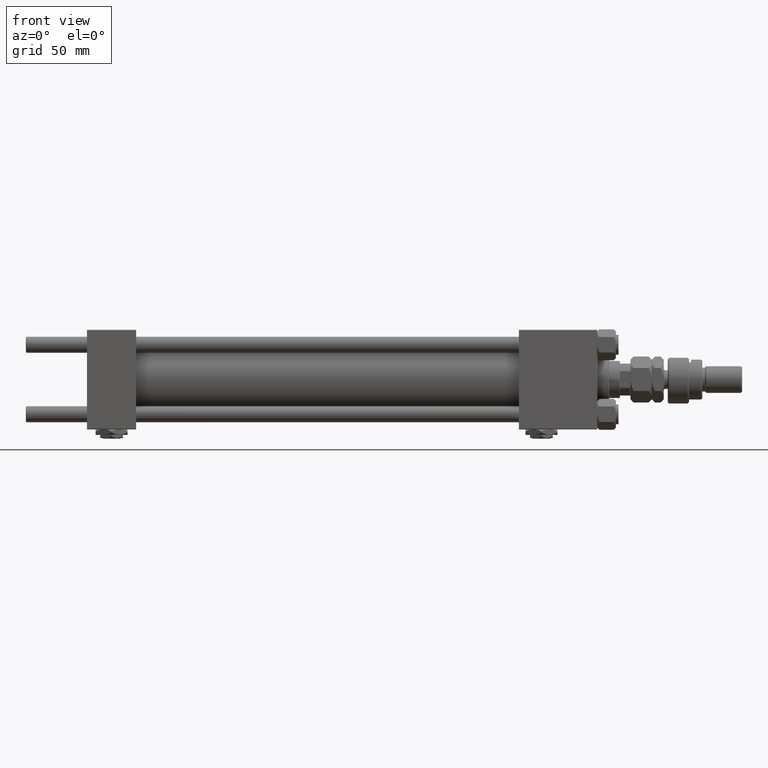
[diagram: clean part render]
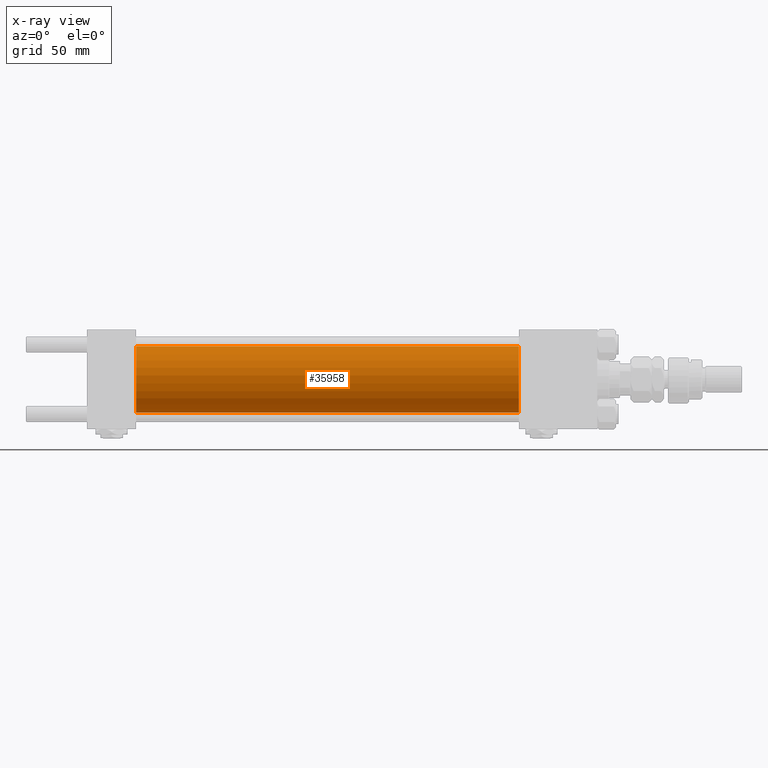
[diagram: x-ray — body ghosted, one internal face saturated and labeled with its STEP entity id]
A machine part, front view, then the same camera in x-ray: the body is ghosted and one INTERNAL B-rep face — a face not visible from any outside direction — is saturated and labeled: STEP entity #35958.
In plain terms, the highlighted cylindrical surface (edge-blend (fillet) strip) has radius 25 mm, axis along (-1, -0, -0).
Its self-contained STEP definition (entity closure, byte-faithful):
#188 = FACE_OUTER_BOUND ( 'NONE', #24389, .T. ) ;
#896 = EDGE_CURVE ( 'NONE', #8909, #50300, #6625, .T. ) ;
#3123 = DIRECTION ( 'NONE',  ( -1.000000000000000000, -0.000000000000000000, -0.000000000000000000 ) ) ;
#3443 = EDGE_CURVE ( 'NONE', #26294, #39742, #15533, .T. ) ;
#3721 = CARTESIAN_POINT ( 'NONE',  ( 324.9999999999999432, 0.000000000000000000, 25.00000000000000000 ) ) ;
#3884 = EDGE_CURVE ( 'NONE', #39742, #50300, #20054, .T. ) ;
#4480 = CARTESIAN_POINT ( 'NONE',  ( 324.9999999999999432, 0.000000000000000000, 0.000000000000000000 ) ) ;
#5401 = CYLINDRICAL_SURFACE ( 'NONE', #26863, 25.00000000000000000 ) ;
#6625 = CIRCLE ( 'NONE', #34843, 25.00000000000000000 ) ;
#7011 = ORIENTED_EDGE ( 'NONE', *, *, #3884, .T. ) ;
#7551 = DIRECTION ( 'NONE',  ( 1.000000000000000000, 0.000000000000000000, 0.000000000000000000 ) ) ;
#8909 = VERTEX_POINT ( 'NONE', #48998 ) ;
#10657 = CARTESIAN_POINT ( 'NONE',  ( 324.9999999999999432, 0.000000000000000000, 0.000000000000000000 ) ) ;
#11606 = CARTESIAN_POINT ( 'NONE',  ( 324.9999999999999432, 0.000000000000000000, 25.00000000000000000 ) ) ;
#15533 = CIRCLE ( 'NONE', #17287, 25.00000000000000000 ) ;
#15858 = ORIENTED_EDGE ( 'NONE', *, *, #896, .F. ) ;
#17287 = AXIS2_PLACEMENT_3D ( 'NONE', #4480, #7551, #38175 ) ;
#17981 = VECTOR ( 'NONE', #50930, 1000.000000000000000 ) ;
#20054 = LINE ( 'NONE', #37174, #27922 ) ;
#23654 = DIRECTION ( 'NONE',  ( -1.000000000000000000, -0.000000000000000000, -0.000000000000000000 ) ) ;
#24389 = EDGE_LOOP ( 'NONE', ( #42523, #7011, #15858, #36183 ) ) ;
#25644 = DIRECTION ( 'NONE',  ( 0.000000000000000000, 0.000000000000000000, -1.000000000000000000 ) ) ;
#26294 = VERTEX_POINT ( 'NONE', #11606 ) ;
#26863 = AXIS2_PLACEMENT_3D ( 'NONE', #10657, #3123, #31098 ) ;
#27922 = VECTOR ( 'NONE', #23654, 1000.000000000000000 ) ;
#30071 = CARTESIAN_POINT ( 'NONE',  ( 37.00000000000000000, 0.000000000000000000, 0.000000000000000000 ) ) ;
#31098 = DIRECTION ( 'NONE',  ( 0.000000000000000000, 0.000000000000000000, 1.000000000000000000 ) ) ;
#34843 = AXIS2_PLACEMENT_3D ( 'NONE', #30071, #50800, #25644 ) ;
#35958 = ADVANCED_FACE ( 'NONE', ( #188 ), #5401, .F. ) ;
#36183 = ORIENTED_EDGE ( 'NONE', *, *, #50296, .F. ) ;
#37174 = CARTESIAN_POINT ( 'NONE',  ( 324.9999999999999432, 3.061616997868383043E-15, -25.00000000000000000 ) ) ;
#38175 = DIRECTION ( 'NONE',  ( 0.000000000000000000, 0.000000000000000000, -1.000000000000000000 ) ) ;
#39742 = VERTEX_POINT ( 'NONE', #50502 ) ;
#41825 = LINE ( 'NONE', #3721, #17981 ) ;
#42523 = ORIENTED_EDGE ( 'NONE', *, *, #3443, .T. ) ;
#46776 = CARTESIAN_POINT ( 'NONE',  ( 37.00000000000000000, 3.061616997868383043E-15, -25.00000000000000000 ) ) ;
#48998 = CARTESIAN_POINT ( 'NONE',  ( 37.00000000000000000, 0.000000000000000000, 25.00000000000000000 ) ) ;
#50296 = EDGE_CURVE ( 'NONE', #26294, #8909, #41825, .T. ) ;
#50300 = VERTEX_POINT ( 'NONE', #46776 ) ;
#50502 = CARTESIAN_POINT ( 'NONE',  ( 324.9999999999999432, 3.061616997868383043E-15, -25.00000000000000000 ) ) ;
#50800 = DIRECTION ( 'NONE',  ( 1.000000000000000000, 0.000000000000000000, 0.000000000000000000 ) ) ;
#50930 = DIRECTION ( 'NONE',  ( -1.000000000000000000, -0.000000000000000000, -0.000000000000000000 ) ) ;